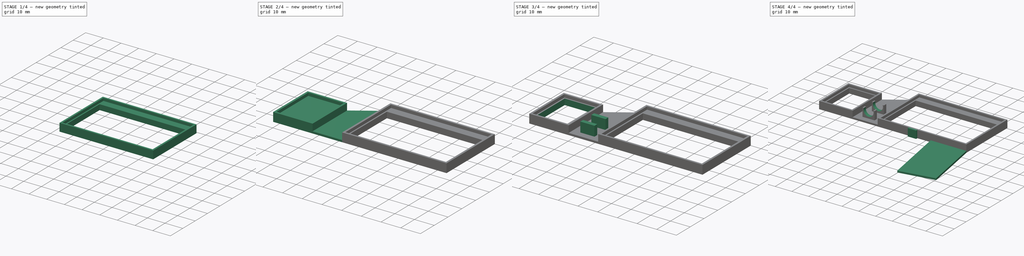
[diagram: build sequence overview — one tinted view per stage of 4, left to right]
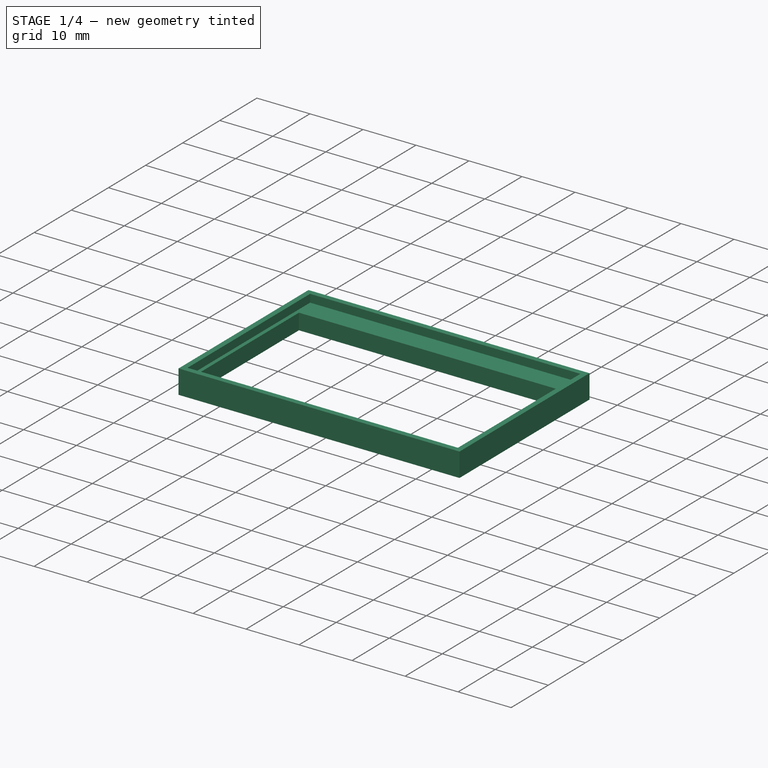
[diagram: stage 1 of 4 — iso view after this stage's code; geometry added in this stage tinted green]
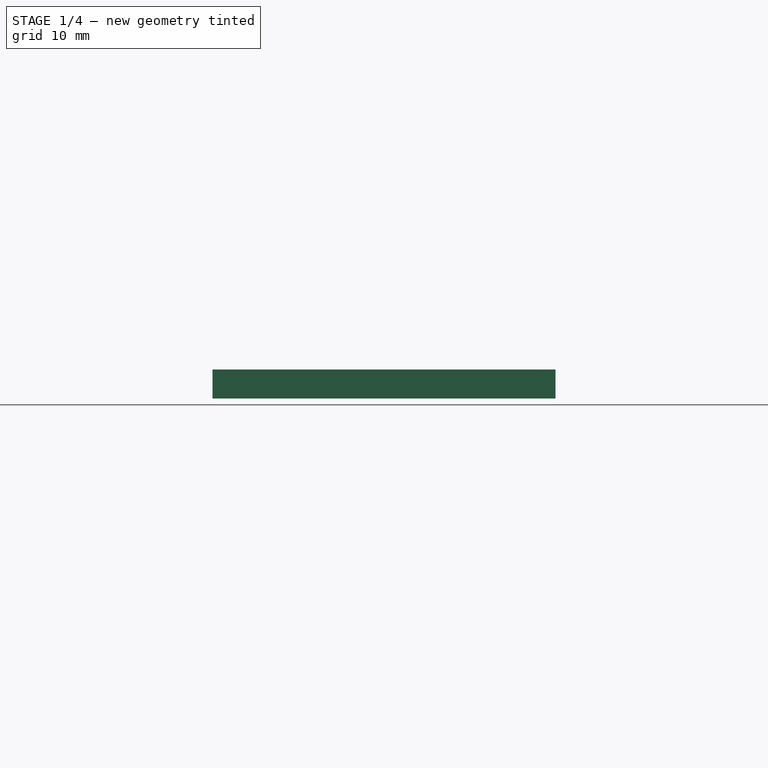
[diagram: stage 1 of 4 — front view after this stage's code; geometry added in this stage tinted green]
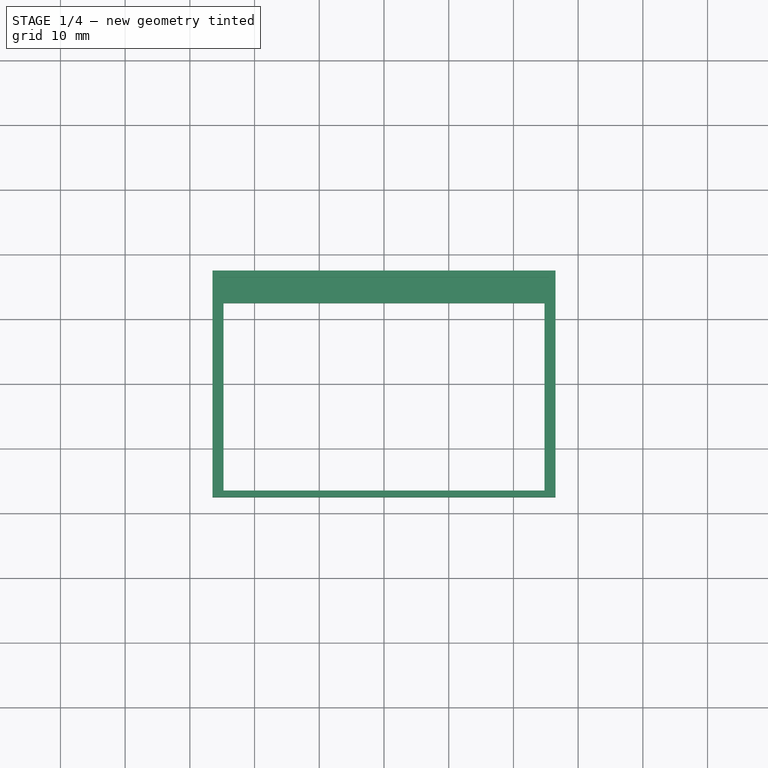
[diagram: stage 1 of 4 — top view after this stage's code; geometry added in this stage tinted green]
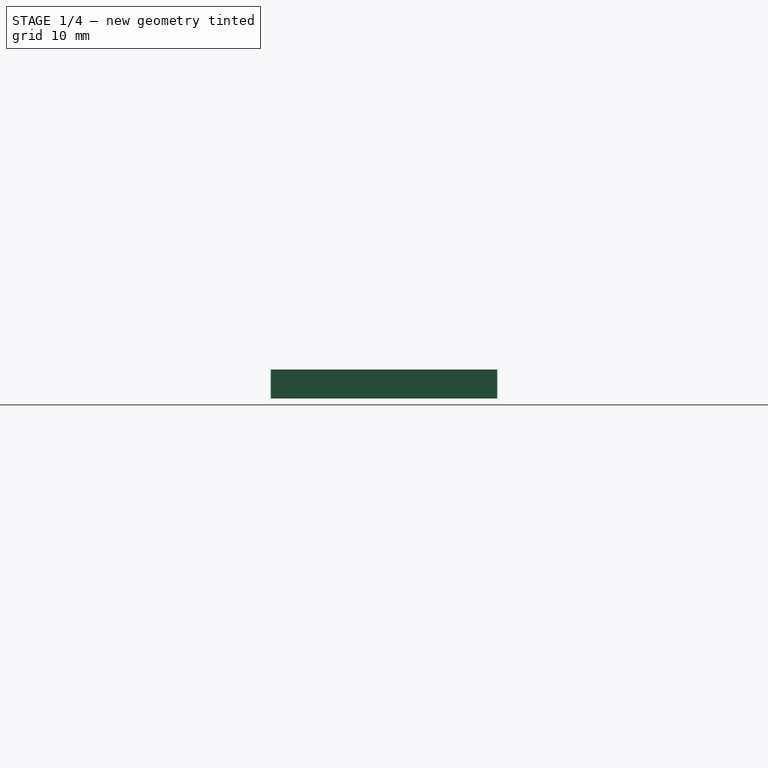
[diagram: stage 1 of 4 — right view after this stage's code; geometry added in this stage tinted green]
FCSTD DOCUMENT  (FreeCAD 0.16R6703 (Git))
Label: M_Gun_Holder
License: All rights reserved
LicenseURL: http://en.wikipedia.org/wiki/All_rights_reserved
objects: Sketcher::SketchObject×11, PartDesign::Pad×6, PartDesign::Pocket×5
note: 33 computed .brp shape members not serialized (recipe doc carries the construction recipe); baked Part::Feature solids carry a one-line shape summary decoded from their .brp

FEATURE [Sketcher::SketchObject] Sketch
  sketch-geometry (4):
    g0: LineSegment StartX=-26.5 StartY=-17.5 StartZ=0 EndX=26.5 EndY=-17.5 EndZ=0
    g1: LineSegment StartX=26.5 StartY=-17.5 StartZ=0 EndX=26.5 EndY=17.5 EndZ=0
    g2: LineSegment StartX=26.5 StartY=17.5 StartZ=0 EndX=-26.5 EndY=17.5 EndZ=0
    g3: LineSegment StartX=-26.5 StartY=17.5 StartZ=0 EndX=-26.5 EndY=-17.5 EndZ=0
  constraints (11):
    c: Coincident(g0,g1)
    c: Coincident(g1,g2)
    c: Coincident(g2,g3)
    c: Coincident(g3,g0)
    c: Horizontal(g0)
    c: Horizontal(g2)
    c: Vertical(g1)
    c: Vertical(g3)
    c: Symmetric(g0,g1,g-1)
    c: Distance(g2) = 53
    c: Distance(g3) = 35
FEATURE [PartDesign::Pad] Pad  label="M-Chip frame"
  Length = 4.5
  Length2 = 100
  Sketch = -> Sketch
  Type = 0
FEATURE [Sketcher::SketchObject] Sketch001
  Placement = pos=(0,0,4.5) rot=(0,0,1;0rad)
  Support = -> Pad [Face6]
  sketch-geometry (4):
    g0: LineSegment StartX=-25.5 StartY=-16.5 StartZ=0 EndX=25.5 EndY=-16.5 EndZ=0
    g1: LineSegment StartX=25.5 StartY=-16.5 StartZ=0 EndX=25.5 EndY=16.5 EndZ=0
    g2: LineSegment StartX=25.5 StartY=16.5 StartZ=0 EndX=-25.5 EndY=16.5 EndZ=0
    g3: LineSegment StartX=-25.5 StartY=16.5 StartZ=0 EndX=-25.5 EndY=-16.5 EndZ=0
  constraints (11):
    c: Coincident(g0,g1)
    c: Coincident(g1,g2)
    c: Coincident(g2,g3)
    c: Coincident(g3,g0)
    c: Horizontal(g0)
    c: Horizontal(g2)
    c: Vertical(g1)
    c: Vertical(g3)
    c: Symmetric(g0,g1,g-1)
    c: Distance(g3) = 33
    c: Distance(g2) = 51
FEATURE [PartDesign::Pocket] Pocket  label="M-Chip seat"
  Length = 1.5
  Sketch = -> Sketch001
  Type = 0
FEATURE [Sketcher::SketchObject] Sketch002
  ExternalGeometry = -> [Pocket]
  Placement = pos=(0,0,3) rot=(0,0,1;0rad)
  Support = -> Pocket [Face11]
  sketch-geometry (4):
    g0: LineSegment StartX=-24.8 StartY=-16.5 StartZ=0 EndX=24.8 EndY=-16.5 EndZ=0
    g1: LineSegment StartX=24.8 StartY=-16.5 StartZ=0 EndX=24.8 EndY=12.5 EndZ=0
    g2: LineSegment StartX=24.8 StartY=12.5 StartZ=0 EndX=-24.8 EndY=12.5 EndZ=0
    g3: LineSegment StartX=-24.8 StartY=12.5 StartZ=0 EndX=-24.8 EndY=-16.5 EndZ=0
  constraints (12):
    c: Coincident(g0,g1)
    c: Coincident(g1,g2)
    c: Coincident(g2,g3)
    c: Coincident(g3,g0)
    c: Horizontal(g0)
    c: Horizontal(g2)
    c: Vertical(g1)
    c: Vertical(g3)
    c: DistanceX(g0,g-6) = 0.7
    c: DistanceY(g-6,g0) = 0
    c: DistanceX(g-6,g0) = 0.7
    c: DistanceY(g2,g-4) = 4
FEATURE [PartDesign::Pocket] Pocket001  label="M-Chip wire spacing"
  Length = 5
  Sketch = -> Sketch002
  Type = 1
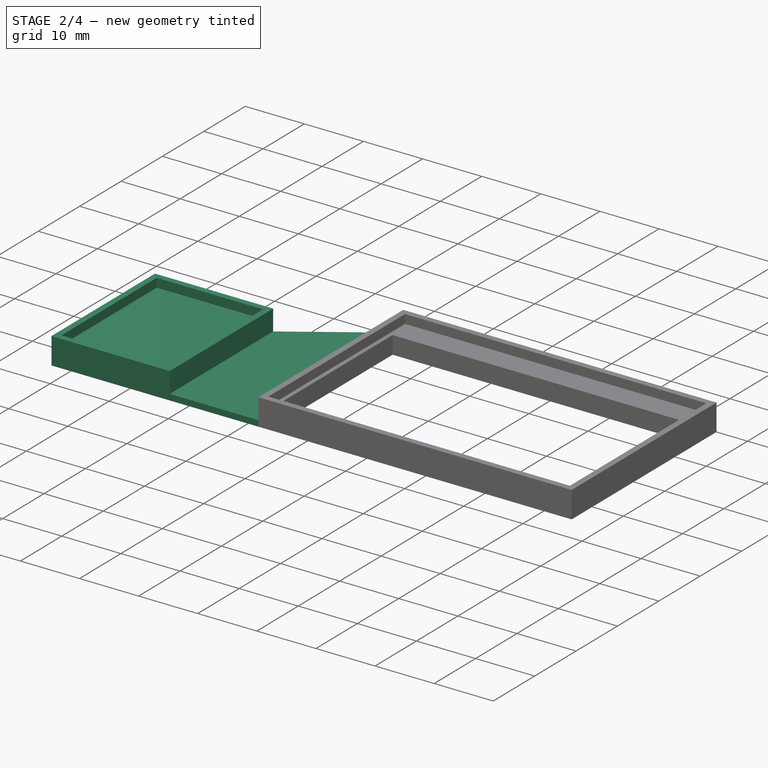
[diagram: stage 2 of 4 — iso view after this stage's code; geometry added in this stage tinted green]
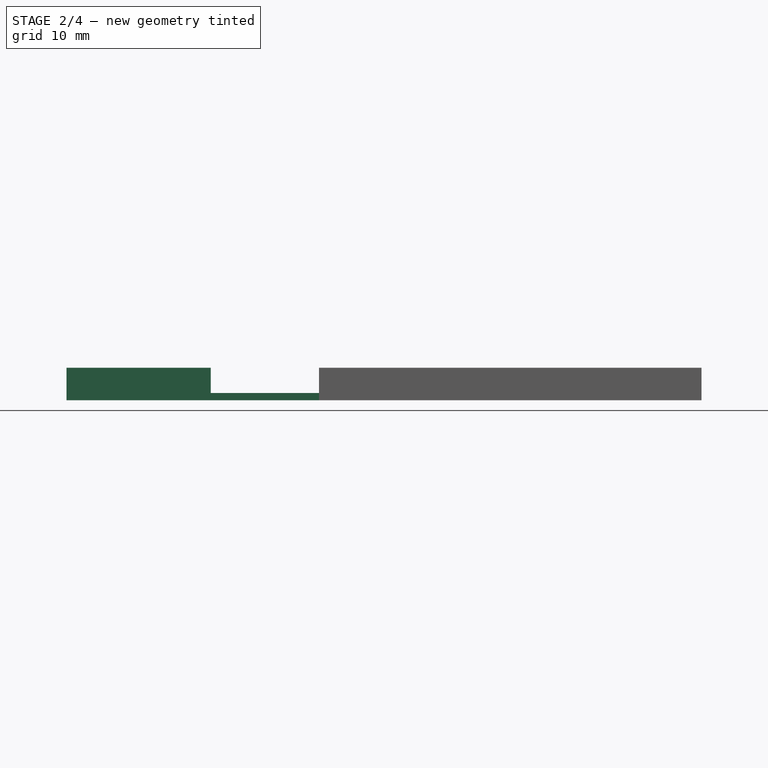
[diagram: stage 2 of 4 — front view after this stage's code; geometry added in this stage tinted green]
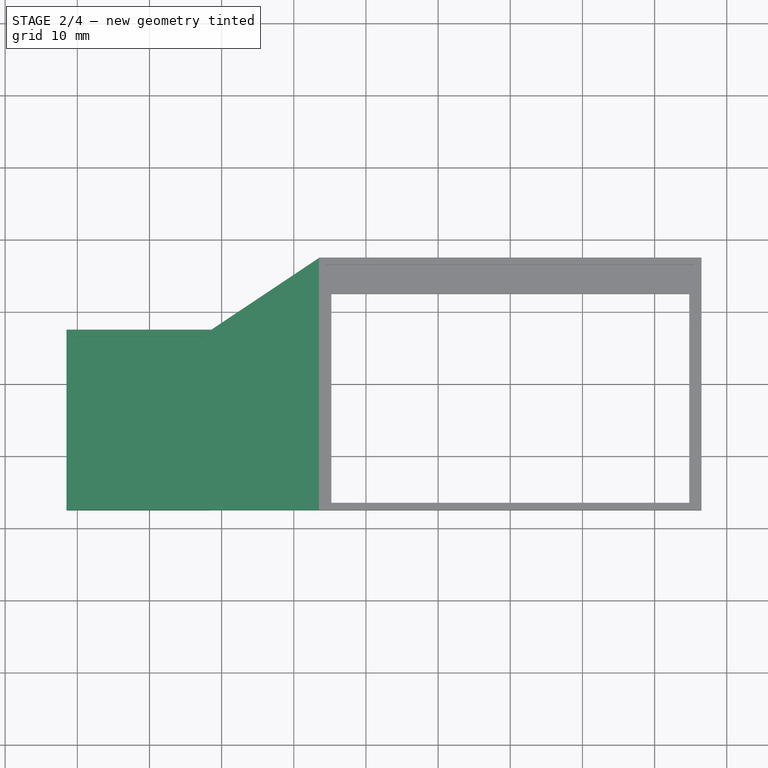
[diagram: stage 2 of 4 — top view after this stage's code; geometry added in this stage tinted green]
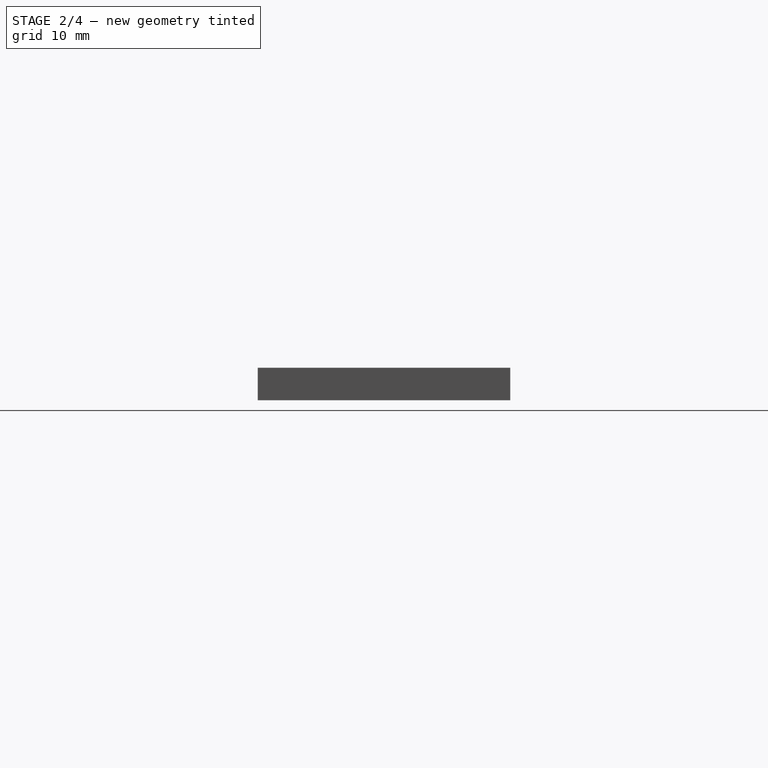
[diagram: stage 2 of 4 — right view after this stage's code; geometry added in this stage tinted green]
FEATURE [Sketcher::SketchObject] Sketch003
  ExternalGeometry = -> [Pocket001]
  Placement = pos=(0,0,0) rot=(1,0,0;3.14159rad)
  Support = -> Pocket001 [Face4]
  sketch-geometry (7):
    g0: LineSegment StartX=-61.5 StartY=17.5 StartZ=0 EndX=-26.5 EndY=17.5 EndZ=0
    g1: LineSegment StartX=-41.5 StartY=-7.5 StartZ=0 EndX=-61.5 EndY=-7.5 EndZ=0
    g2: LineSegment StartX=-61.5 StartY=-7.5 StartZ=0 EndX=-61.5 EndY=17.5 EndZ=0
    g3: LineSegment StartX=-26.5 StartY=17.5 StartZ=0 EndX=-25.5705 EndY=16.6648 EndZ=0
    g4: LineSegment StartX=-25.5705 StartY=16.6648 StartZ=0 EndX=-25.5705 EndY=-16.849 EndZ=0
    g5: LineSegment StartX=-25.5705 StartY=-16.849 StartZ=0 EndX=-26.5 EndY=-17.5 EndZ=0
    g6: LineSegment StartX=-26.5 StartY=-17.5 StartZ=0 EndX=-41.5 EndY=-7.5 EndZ=0
  constraints (16):
    c: Horizontal(g0)
    c: Horizontal(g1)
    c: Coincident(g2,g1)
    c: Coincident(g2,g0)
    c: Vertical(g2)
    c: Distance(g2) = 25
    c: Distance(g1) = 20
    c: DistanceX(g1,g-3) = 15
    c: Coincident(g0,g-3)
    c: Coincident(g0,g3)
    c: Coincident(g3,g4)
    c: Vertical(g4)
    c: Coincident(g4,g5)
    c: Coincident(g5,g-3)
    c: Coincident(g5,g6)
    c: Coincident(g6,g1)
FEATURE [PartDesign::Pad] Pad001  label="LEnd-Connector"
  Length = 1
  Length2 = 100
  Reversed = true
  Sketch = -> Sketch003
  Type = 0
FEATURE [Sketcher::SketchObject] Sketch004
  ExternalGeometry = -> [Pad001]
  Placement = pos=(0,0,1) rot=(0,0,1;0rad)
  Support = -> Pad001 [Face20]
  sketch-geometry (4):
    g0: LineSegment StartX=-61.5 StartY=-17.5 StartZ=0 EndX=-41.5 EndY=-17.5 EndZ=0
    g1: LineSegment StartX=-41.5 StartY=-17.5 StartZ=0 EndX=-41.5 EndY=7.5 EndZ=0
    g2: LineSegment StartX=-41.5 StartY=7.5 StartZ=0 EndX=-61.5 EndY=7.5 EndZ=0
    g3: LineSegment StartX=-61.5 StartY=7.5 StartZ=0 EndX=-61.5 EndY=-17.5 EndZ=0
  constraints (10):
    c: Coincident(g0,g1)
    c: Coincident(g1,g2)
    c: Coincident(g2,g3)
    c: Coincident(g3,g0)
    c: Horizontal(g0)
    c: Horizontal(g2)
    c: Vertical(g1)
    c: Vertical(g3)
    c: Coincident(g0,g-4)
    c: Coincident(g1,g-3)
FEATURE [PartDesign::Pad] Pad002  label="LEnd frame"
  Length = 3.5
  Length2 = 100
  Sketch = -> Sketch004
  Type = 0
FEATURE [Sketcher::SketchObject] Sketch005
  ExternalGeometry = -> [Pad002]
  Placement = pos=(0,0,4.5) rot=(0,0,1;0rad)
  Support = -> Pad002 [Face25]
  sketch-geometry (4):
    g0: LineSegment StartX=-60.5 StartY=-16.5 StartZ=0 EndX=-42.5 EndY=-16.5 EndZ=0
    g1: LineSegment StartX=-42.5 StartY=-16.5 StartZ=0 EndX=-42.5 EndY=6.5 EndZ=0
    g2: LineSegment StartX=-42.5 StartY=6.5 StartZ=0 EndX=-60.5 EndY=6.5 EndZ=0
    g3: LineSegment StartX=-60.5 StartY=6.5 StartZ=0 EndX=-60.5 EndY=-16.5 EndZ=0
  constraints (12):
    c: Coincident(g0,g1)
    c: Coincident(g1,g2)
    c: Coincident(g2,g3)
    c: Coincident(g3,g0)
    c: Horizontal(g0)
    c: Horizontal(g2)
    c: Vertical(g1)
    c: Vertical(g3)
    c: Distance(g2) = 18
    c: Distance(g1) = 23
    c: DistanceX(g-3,g0) = 1
    c: DistanceY(g-3,g0) = 1
FEATURE [PartDesign::Pocket] Pocket002  label="LEnd seat"
  Length = 1.5
  Sketch = -> Sketch005
  Type = 0
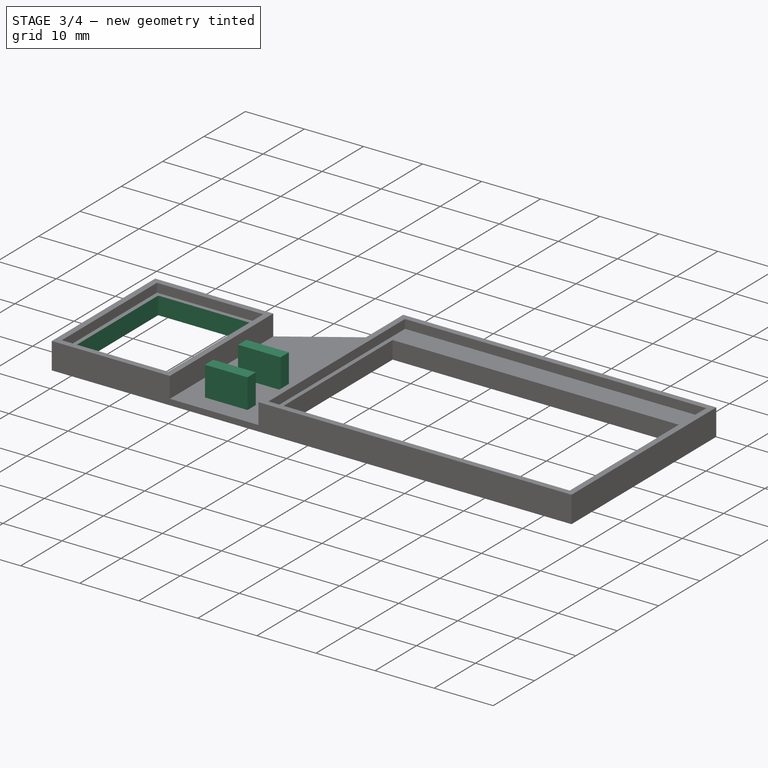
[diagram: stage 3 of 4 — iso view after this stage's code; geometry added in this stage tinted green]
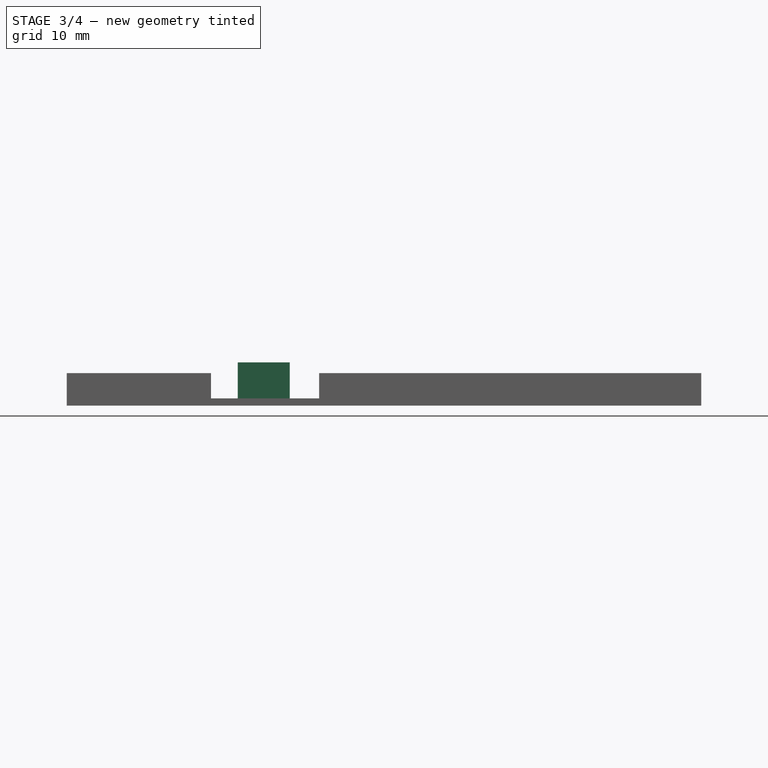
[diagram: stage 3 of 4 — front view after this stage's code; geometry added in this stage tinted green]
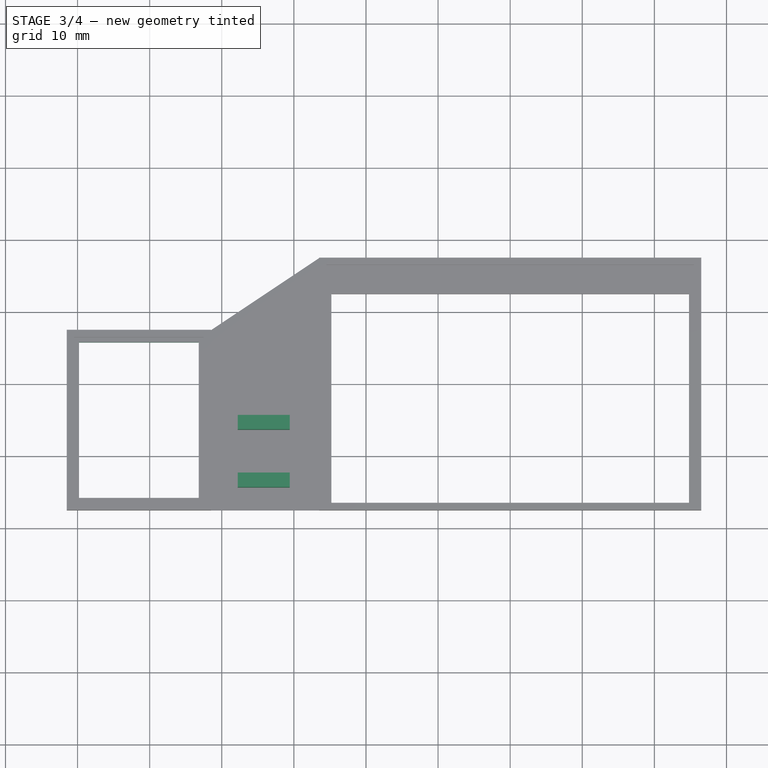
[diagram: stage 3 of 4 — top view after this stage's code; geometry added in this stage tinted green]
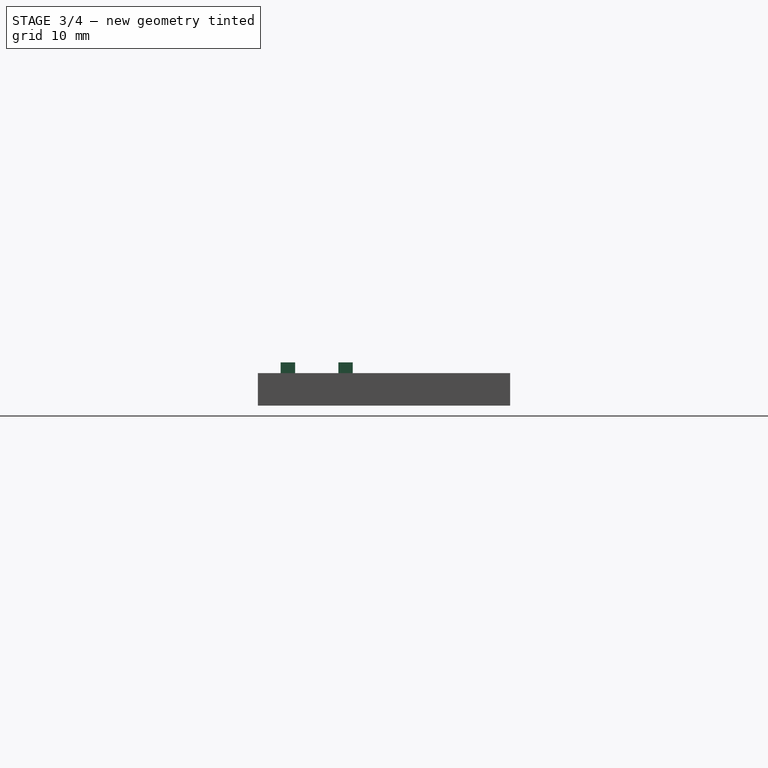
[diagram: stage 3 of 4 — right view after this stage's code; geometry added in this stage tinted green]
FEATURE [Sketcher::SketchObject] Sketch006
  ExternalGeometry = -> [Pocket002]
  Placement = pos=(0,0,3) rot=(0,0,1;0rad)
  Support = -> Pocket002 [Face32]
  sketch-geometry (4):
    g0: LineSegment StartX=-59.8 StartY=-15.8 StartZ=0 EndX=-43.2 EndY=-15.8 EndZ=0
    g1: LineSegment StartX=-43.2 StartY=-15.8 StartZ=0 EndX=-43.2 EndY=5.8 EndZ=0
    g2: LineSegment StartX=-43.2 StartY=5.8 StartZ=0 EndX=-59.8 EndY=5.8 EndZ=0
    g3: LineSegment StartX=-59.8 StartY=5.8 StartZ=0 EndX=-59.8 EndY=-15.8 EndZ=0
  constraints (12):
    c: Coincident(g0,g1)
    c: Coincident(g1,g2)
    c: Coincident(g2,g3)
    c: Coincident(g3,g0)
    c: Horizontal(g0)
    c: Horizontal(g2)
    c: Vertical(g1)
    c: Vertical(g3)
    c: DistanceX(g-3,g0) = 0.7
    c: DistanceY(g-3,g0) = 0.7
    c: DistanceX(g1,g-4) = 0.7
    c: DistanceY(g1,g-4) = 0.7
FEATURE [PartDesign::Pocket] Pocket003  label="LEnd wire spacing"
  Length = 5
  Sketch = -> Sketch006
  Type = 1
FEATURE [Sketcher::SketchObject] Sketch007
  Placement = pos=(0,0,1) rot=(0,0,1;0rad)
  Support = -> Pocket003 [Face21]
  sketch-geometry (8):
    g0: LineSegment StartX=-37.776 StartY=-14.3332 StartZ=0 EndX=-30.576 EndY=-14.3332 EndZ=0
    g1: LineSegment StartX=-30.576 StartY=-14.3332 StartZ=0 EndX=-30.576 EndY=-12.3332 EndZ=0
    g2: LineSegment StartX=-30.576 StartY=-12.3332 StartZ=0 EndX=-37.776 EndY=-12.3332 EndZ=0
    g3: LineSegment StartX=-37.776 StartY=-12.3332 StartZ=0 EndX=-37.776 EndY=-14.3332 EndZ=0
    g4: LineSegment StartX=-37.776 StartY=-6.33323 StartZ=0 EndX=-30.576 EndY=-6.33323 EndZ=0
    g5: LineSegment StartX=-30.576 StartY=-6.33323 StartZ=0 EndX=-30.576 EndY=-4.33323 EndZ=0
    g6: LineSegment StartX=-30.576 StartY=-4.33323 StartZ=0 EndX=-37.776 EndY=-4.33323 EndZ=0
    g7: LineSegment StartX=-37.776 StartY=-4.33323 StartZ=0 EndX=-37.776 EndY=-6.33323 EndZ=0
  constraints (22):
    c: Coincident(g0,g1)
    c: Coincident(g1,g2)
    c: Coincident(g2,g3)
    c: Coincident(g3,g0)
    c: Horizontal(g0)
    c: Horizontal(g2)
    c: Vertical(g1)
    c: Vertical(g3)
    c: Distance(g0) = 7.2
    c: Distance(g1) = 2
    c: Coincident(g4,g5)
    c: Coincident(g5,g6)
    c: Coincident(g6,g7)
    c: Coincident(g7,g4)
    c: Horizontal(g4)
    c: Horizontal(g6)
    c: Vertical(g5)
    c: Vertical(g7)
    c: Distance(g4) = 7.2
    c: Distance(g7) = 2
    c: DistanceX(g0,g5) = 0
    c: Distance(g5,g0) = 10
FEATURE [PartDesign::Pad] Pad003  label="Vibr frame"
  Length = 5
  Length2 = 100
  Sketch = -> Sketch007
  Type = 0
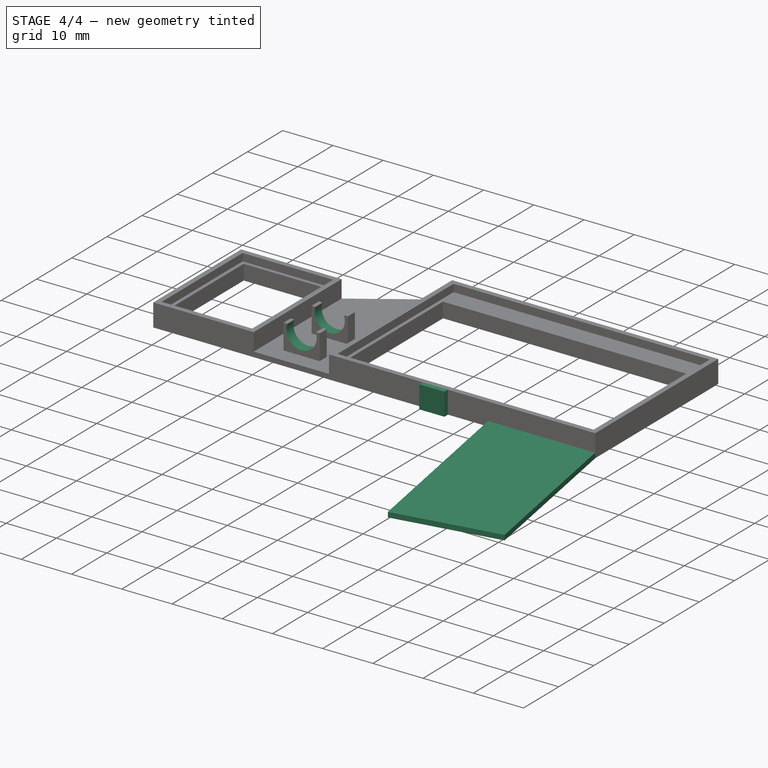
[diagram: stage 4 of 4 — iso view after this stage's code; geometry added in this stage tinted green]
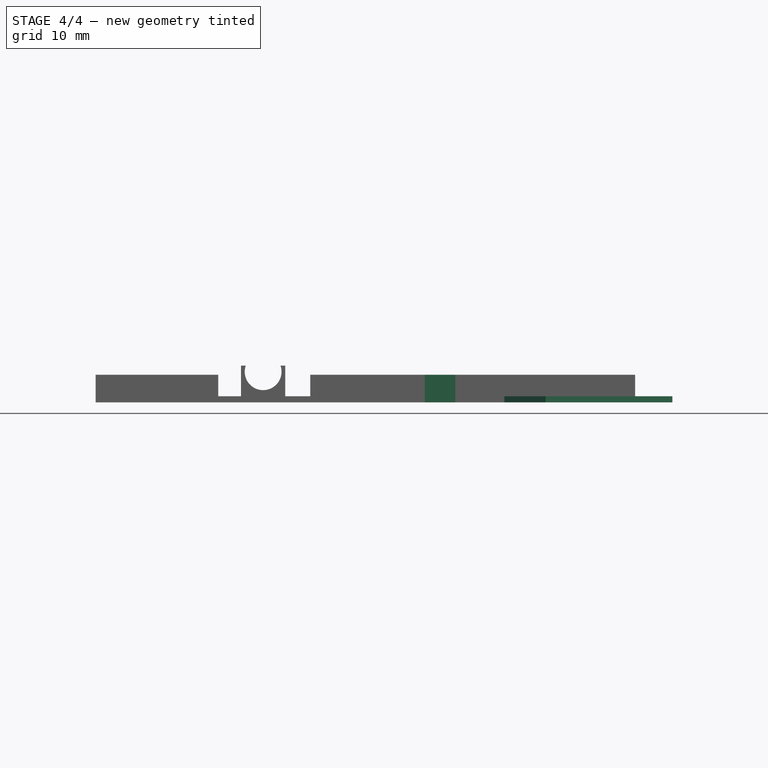
[diagram: stage 4 of 4 — front view after this stage's code; geometry added in this stage tinted green]
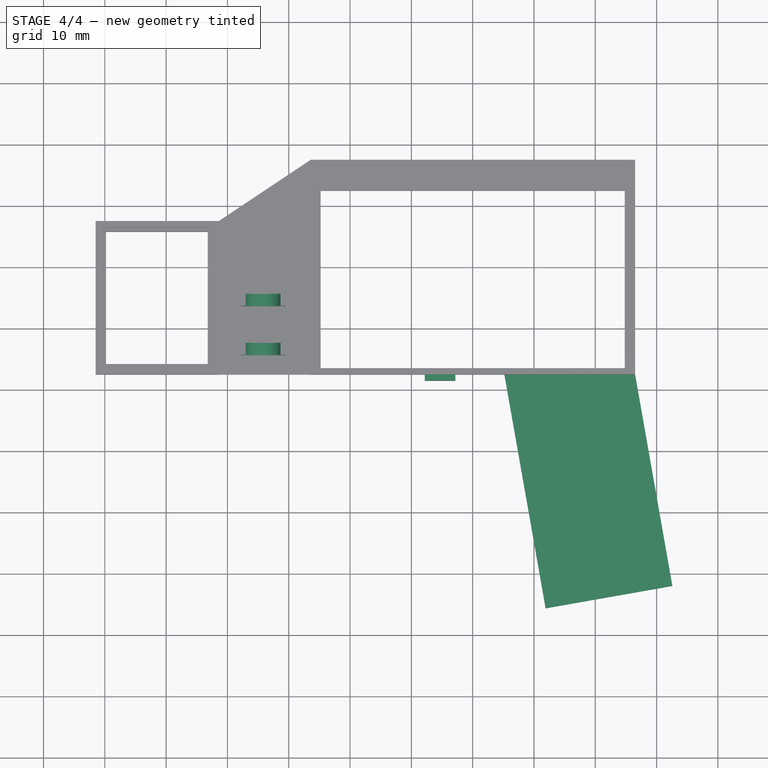
[diagram: stage 4 of 4 — top view after this stage's code; geometry added in this stage tinted green]
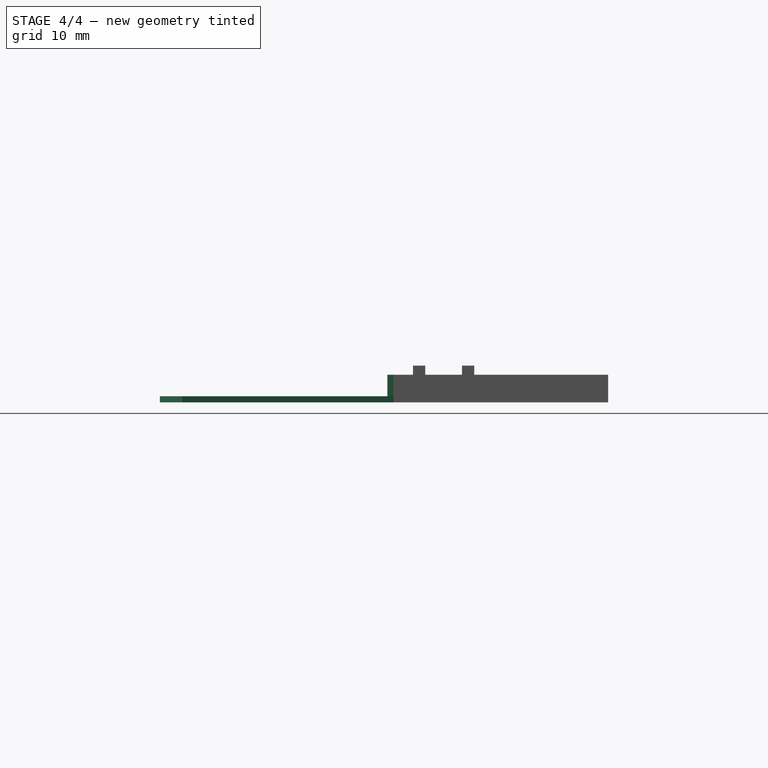
[diagram: stage 4 of 4 — right view after this stage's code; geometry added in this stage tinted green]
FEATURE [Sketcher::SketchObject] Sketch008
  ExternalGeometry = -> [Pad003]
  Placement = pos=(0,-14.3332,0) rot=(1,0,0;1.5708rad)
  Support = -> Pad003 [Face35]
  sketch-geometry (1):
    g0: Circle CenterX=-34.176 CenterY=5 CenterZ=0 NormalX=0 NormalY=0 NormalZ=1 Radius=3
  constraints (3):
    c: Radius(g0) = 3
    c: DistanceX(g-3,g0) = 3.6
    c: DistanceY(g-3,g0) = 4
FEATURE [PartDesign::Pocket] Pocket004  label="Vibr seat"
  Length = 10
  Sketch = -> Sketch008
  Type = 0
FEATURE [Sketcher::SketchObject] Sketch009
  ExternalGeometry = -> [Pocket004]
  Placement = pos=(0,0,0) rot=(1,0,0;3.14159rad)
  Support = -> Pocket004 [Face4]
  sketch-geometry (6):
    g0: LineSegment StartX=26.5 StartY=17.5 StartZ=0 EndX=32.5777 EndY=51.9683 EndZ=0
    g1: LineSegment StartX=32.5777 StartY=51.9683 StartZ=0 EndX=11.8967 EndY=55.6149 EndZ=0
    g2: LineSegment StartX=11.8967 StartY=55.6149 StartZ=0 EndX=5.17604 EndY=17.5 EndZ=0
    g3: LineSegment StartX=5.17604 StartY=17.5 StartZ=0 EndX=5.96875 EndY=16.9575 EndZ=0
    g4: LineSegment StartX=5.96875 StartY=16.9575 StartZ=0 EndX=25.4099 EndY=16.9575 EndZ=0
    g5: LineSegment StartX=25.4099 StartY=16.9575 StartZ=0 EndX=26.5 EndY=17.5 EndZ=0
  constraints (12):
    c: Coincident(g-3,g0)
    c: Perpendicular(g0,g1) = 1.5708
    c: Perpendicular(g1,g2) = 1.5708
    c: PointOnObject(g2,g-3)
    c: Angle(g2,g-3) = 1.74533
    c: Distance(g1) = 21
    c: Distance(g0) = 35
    c: Coincident(g2,g3)
    c: Coincident(g3,g4)
    c: Horizontal(g4)
    c: Coincident(g4,g5)
    c: Coincident(g5,g0)
FEATURE [PartDesign::Pad] Pad004  label="Battery / Grip"
  Length = 1
  Length2 = 100
  Reversed = true
  Sketch = -> Sketch009
  Type = 0
FEATURE [Sketcher::SketchObject] Sketch010
  ExternalGeometry = -> [Pad004]
  Placement = pos=(0,-17.5,0) rot=(1,0,0;1.5708rad)
  Support = -> Pad004 [Face8]
  sketch-geometry (4):
    g0: LineSegment StartX=-7.82396 StartY=0 StartZ=0 EndX=-2.82396 EndY=0 EndZ=0
    g1: LineSegment StartX=-2.82396 StartY=0 StartZ=0 EndX=-2.82396 EndY=4.5 EndZ=0
    g2: LineSegment StartX=-2.82396 StartY=4.5 StartZ=0 EndX=-7.82396 EndY=4.5 EndZ=0
    g3: LineSegment StartX=-7.82396 StartY=4.5 StartZ=0 EndX=-7.82396 EndY=0 EndZ=0
  constraints (12):
    c: Coincident(g0,g1)
    c: Coincident(g1,g2)
    c: Coincident(g2,g3)
    c: Coincident(g3,g0)
    c: Horizontal(g0)
    c: Horizontal(g2)
    c: Vertical(g1)
    c: Vertical(g3)
    c: PointOnObject(g0,g-1)
    c: PointOnObject(g1,g-4)
    c: Distance(g0) = 5
    c: Distance(g0,g-3) = 8
FEATURE [PartDesign::Pad] Pad005  label="Button"
  Length = 1
  Length2 = 100
  Sketch = -> Sketch010
  Type = 0
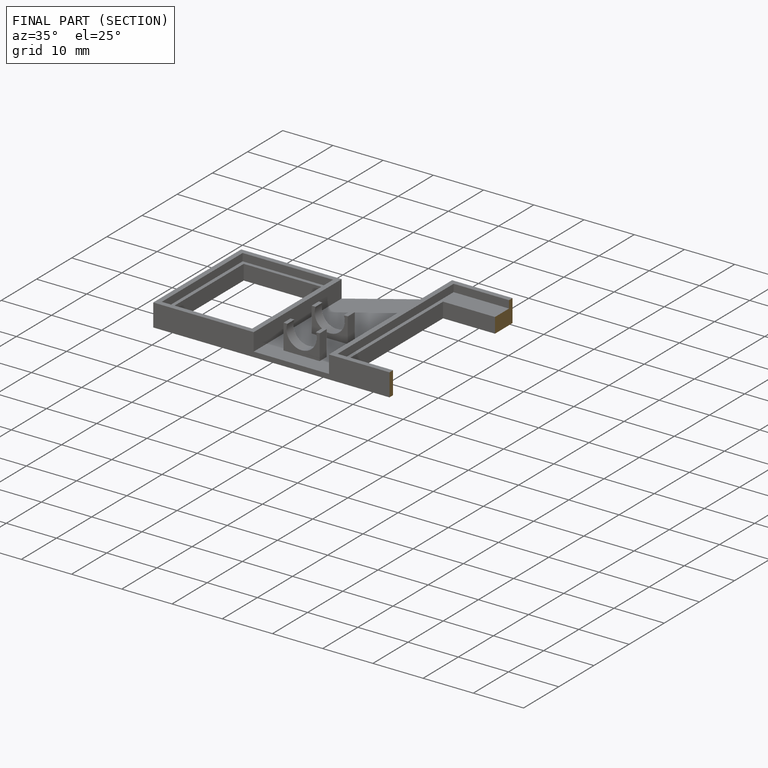
[diagram: finished part — half-section view (interior)]
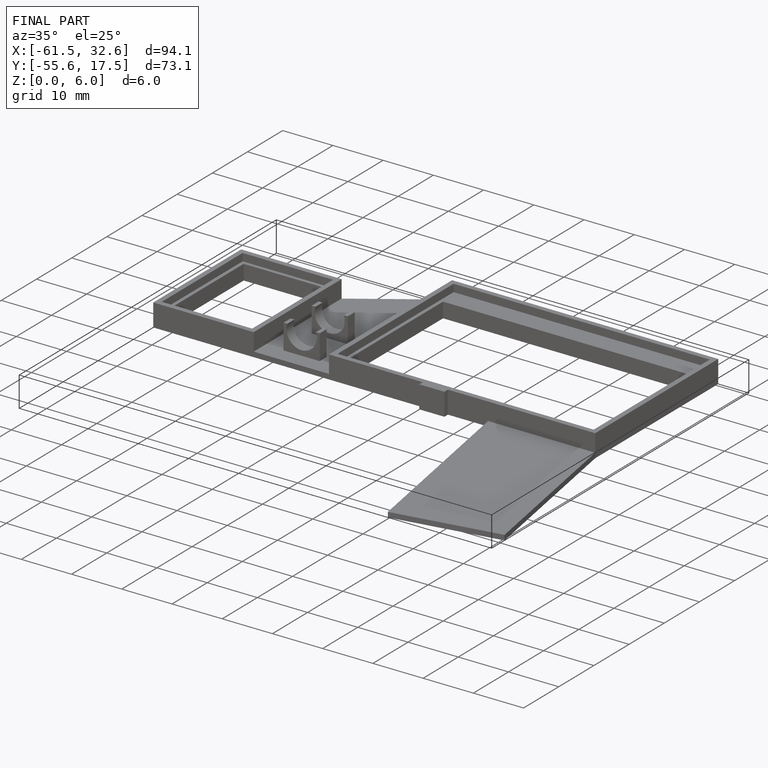
[diagram: finished part — iso view with bounding-box wireframe]
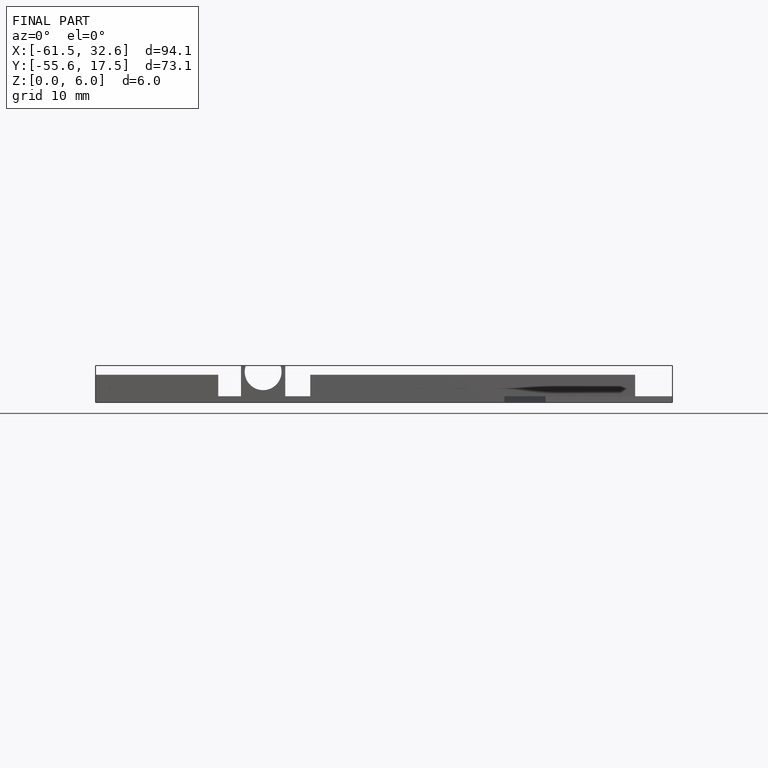
[diagram: finished part — front view with bounding-box wireframe]
